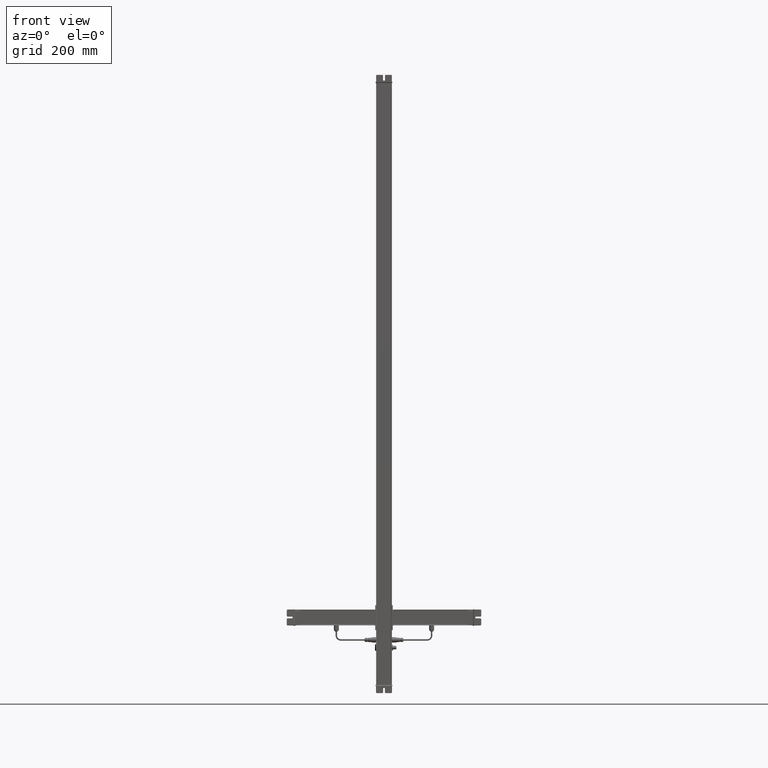
[diagram: clean part render]
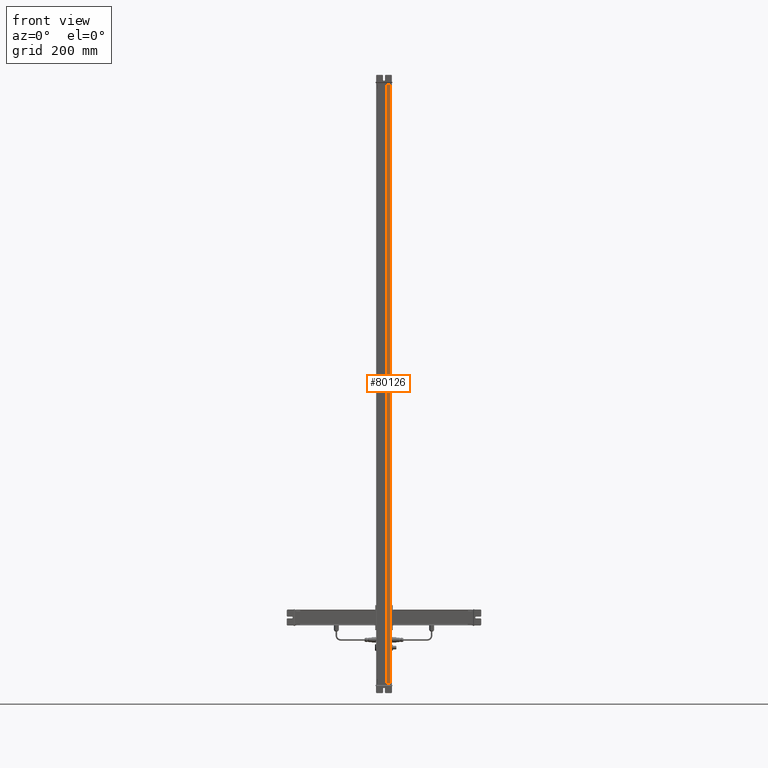
[diagram: same view with one face highlighted and labeled with its STEP entity id]
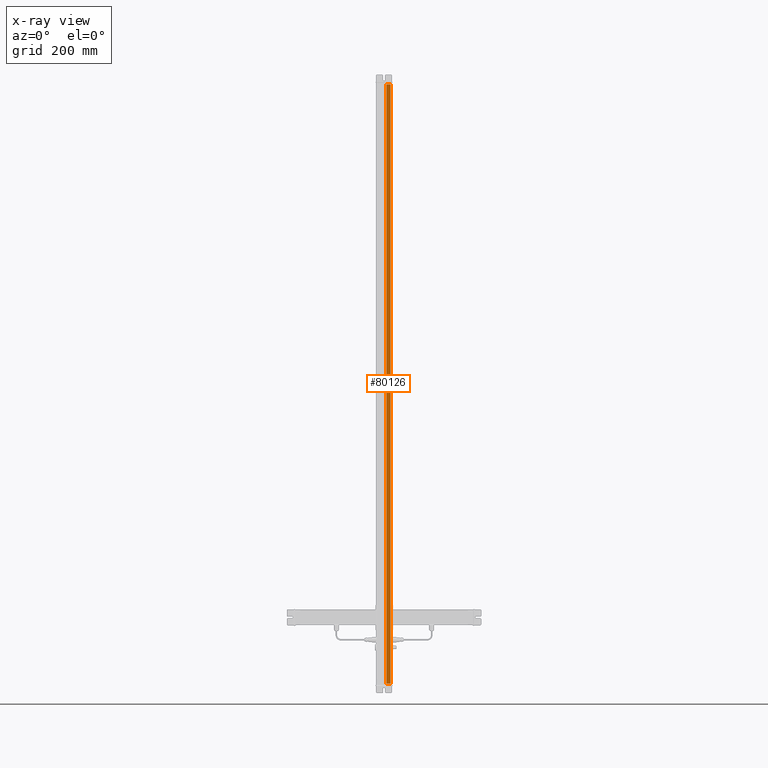
[diagram: x-ray of the same camera — body ghosted, the highlighted face saturated]
A machine part, front view. The second image highlights one B-rep face of the part: STEP entity #80126.
The next image is the same camera in x-ray: the body ghosted, the highlighted face saturated — about 0% of this face is hidden behind the body in this view.
In plain terms, the highlighted planar face has unit normal (0, -1, 0).
Its self-contained STEP definition (entity closure, byte-faithful):
#79946=CARTESIAN_POINT('Axis2P3D Location',(647.67209889,120.060780121,0.)) ;
#80079=CARTESIAN_POINT('Vertex',(647.67209889,120.060780121,2012.)) ;
#80086=CARTESIAN_POINT('Vertex',(647.67209889,120.060780121,0.)) ;
#80089=CARTESIAN_POINT('Line Origine',(647.67209889,120.060780121,1006.)) ;
#80101=CARTESIAN_POINT('Line Origine',(654.908380451,120.060780121,0.)) ;
#80105=CARTESIAN_POINT('Vertex',(662.144662012,120.060780121,0.)) ;
#80108=CARTESIAN_POINT('Line Origine',(662.144662012,120.060780121,1006.)) ;
#80112=CARTESIAN_POINT('Vertex',(662.144662012,120.060780121,2012.)) ;
#80115=CARTESIAN_POINT('Line Origine',(654.908380451,120.060780121,2012.)) ;
#79947=DIRECTION('Axis2P3D Direction',(0.,-1.,0.)) ;
#79948=DIRECTION('Axis2P3D XDirection',(1.,0.,0.)) ;
#80090=DIRECTION('Vector Direction',(0.,0.,1.)) ;
#80102=DIRECTION('Vector Direction',(1.,0.,0.)) ;
#80109=DIRECTION('Vector Direction',(0.,0.,1.)) ;
#80116=DIRECTION('Vector Direction',(1.,0.,0.)) ;
#79949=AXIS2_PLACEMENT_3D('Plane Axis2P3D',#79946,#79947,#79948) ;
#80121=ORIENTED_EDGE('',*,*,#80093,.F.) ;
#80122=ORIENTED_EDGE('',*,*,#80107,.T.) ;
#80123=ORIENTED_EDGE('',*,*,#80114,.T.) ;
#80124=ORIENTED_EDGE('',*,*,#80119,.F.) ;
#80091=VECTOR('Line Direction',#80090,1.) ;
#80103=VECTOR('Line Direction',#80102,1.) ;
#80110=VECTOR('Line Direction',#80109,1.) ;
#80117=VECTOR('Line Direction',#80116,1.) ;
#80126=ADVANCED_FACE('Body.2',(#80125),#79950,.T.) ;
#80093=EDGE_CURVE('',#80087,#80080,#80092,.T.) ;
#80107=EDGE_CURVE('',#80087,#80106,#80104,.T.) ;
#80114=EDGE_CURVE('',#80106,#80113,#80111,.T.) ;
#80119=EDGE_CURVE('',#80080,#80113,#80118,.T.) ;
#80120=EDGE_LOOP('',(#80121,#80122,#80123,#80124)) ;
#80125=FACE_OUTER_BOUND('',#80120,.T.) ;
#80092=LINE('Line',#80089,#80091) ;
#80104=LINE('Line',#80101,#80103) ;
#80111=LINE('Line',#80108,#80110) ;
#80118=LINE('Line',#80115,#80117) ;
#79950=PLANE('Plane',#79949) ;
#80080=VERTEX_POINT('',#80079) ;
#80087=VERTEX_POINT('',#80086) ;
#80106=VERTEX_POINT('',#80105) ;
#80113=VERTEX_POINT('',#80112) ;